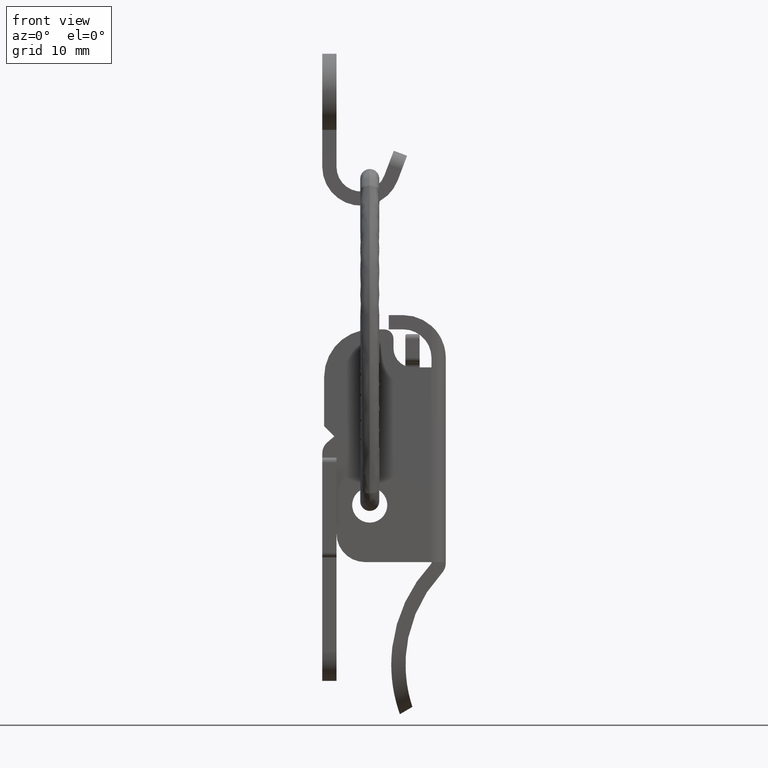
[diagram: clean part render]
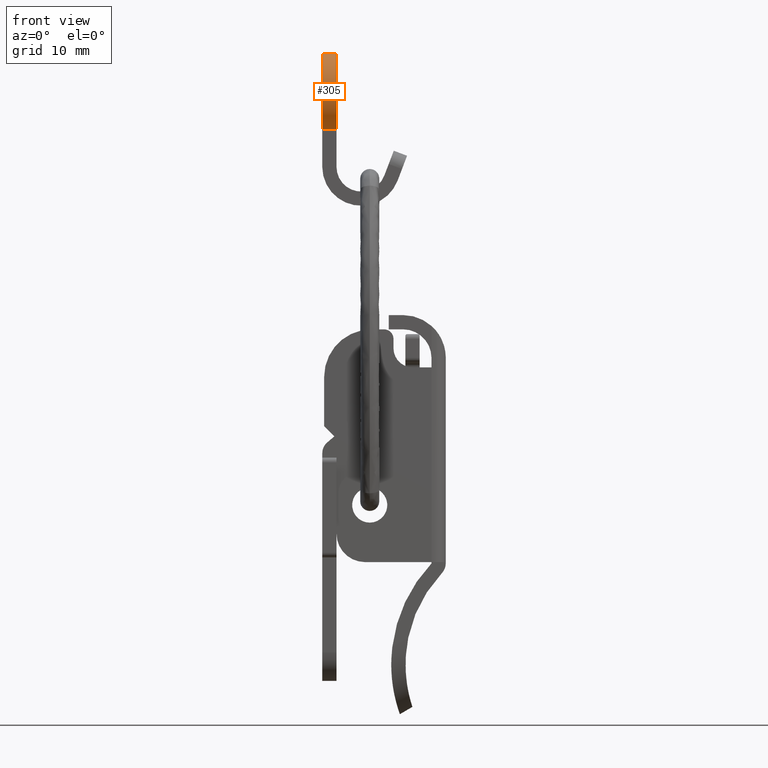
[diagram: same view with one face highlighted and labeled with its STEP entity id]
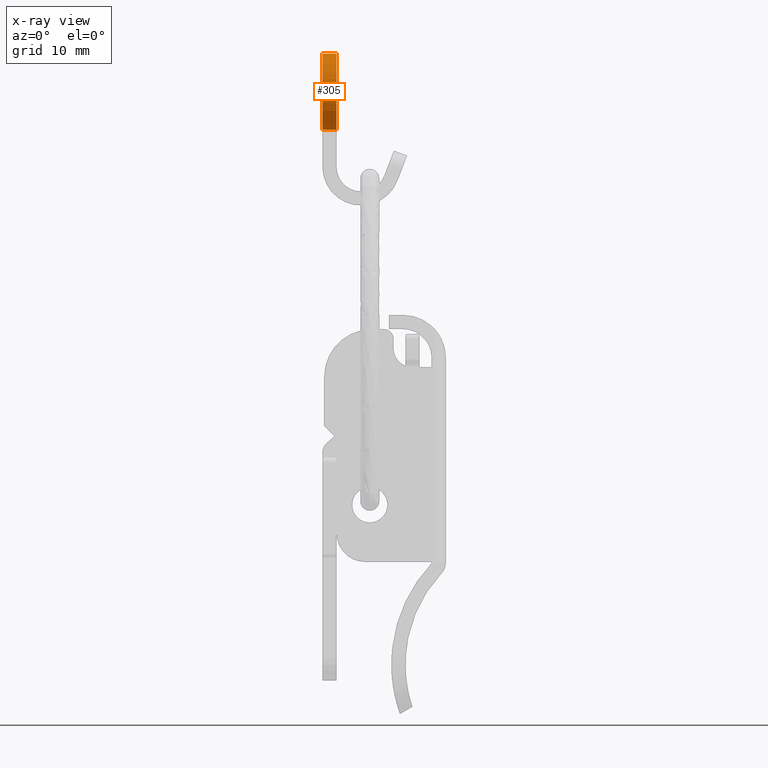
[diagram: x-ray of the same camera — body ghosted, the highlighted face saturated]
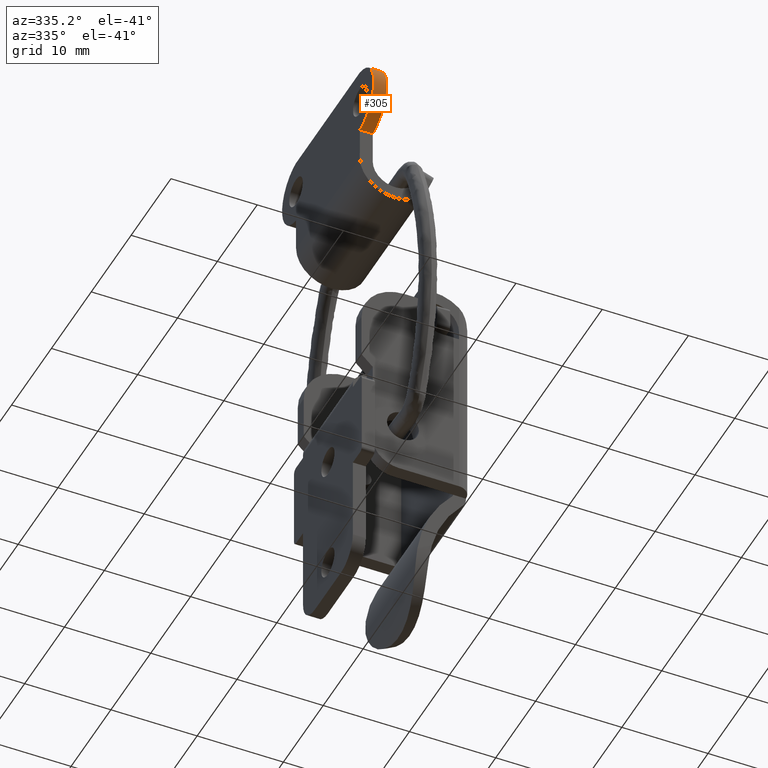
[diagram: same view with one face highlighted and labeled with its STEP entity id]
A machine part, front view. The second image highlights one B-rep face of the part: STEP entity #305.
The next image is the same camera in x-ray: the body ghosted, the highlighted face saturated — about 0% of this face is hidden behind the body in this view.
A second angle (auxiliary view) of the same face is appended — the face is thin or edge-on in the first view.
In plain terms, the highlighted cylindrical surface (partial cylindrical patch) has radius 4.0369 mm, axis along (-1, 0, 0).
Its self-contained STEP definition (entity closure, byte-faithful):
#305=ADVANCED_FACE('',(#1517),#1516,.T.);
#1516=CYLINDRICAL_SURFACE('',#2388,4.03690855919E+00);
#1517=FACE_OUTER_BOUND('',#2389,.T.);
#2385=CARTESIAN_POINT('',(-1.54630914408E+01,1.00000000000E+03,-1.26476606965E-11));
#2386=DIRECTION('',(-0.00000000000E+00,1.00000000000E+00,0.00000000000E+00));
#2387=DIRECTION('',(-0.00000000000E+00,-0.00000000000E+00,1.00000000000E+00));
#2388=AXIS2_PLACEMENT_3D('',#2385,#2386,#2387);
#2389=EDGE_LOOP('',(#3074,#3075,#3076,#3077));
#3074=ORIENTED_EDGE('',*,*,#3443,.F.);
#3075=ORIENTED_EDGE('',*,*,#3455,.F.);
#3076=ORIENTED_EDGE('',*,*,#3432,.T.);
#3077=ORIENTED_EDGE('',*,*,#3456,.T.);
#3432=EDGE_CURVE('',#5544,#5537,#5545,.T.);
#3443=EDGE_CURVE('',#5613,#5593,#5620,.T.);
#3455=EDGE_CURVE('',#5544,#5613,#5700,.T.);
#3456=EDGE_CURVE('',#5537,#5593,#5706,.T.);
#5537=VERTEX_POINT('',#7113);
#5544=VERTEX_POINT('',#7116);
#5545=(BOUNDED_CURVE() B_SPLINE_CURVE(2,(#7117,#7118,#7119,#7120,#7121),.UNSPECIFIED.,.F.,.F.) B_SPLINE_CURVE_WITH_KNOTS((3,2,3),(0.00000000000E+00,5.00000000000E-01,1.00000000000E+00),.UNSPECIFIED.) CURVE() GEOMETRIC_REPRESENTATION_ITEM() RATIONAL_B_SPLINE_CURVE((1.00000000000E+00,7.53297637477E-01,1.00000000000E+00,7.53297637477E-01,1.00000000000E+00)) REPRESENTATION_ITEM('') );
#5593=VERTEX_POINT('',#7152);
#5613=VERTEX_POINT('',#7164);
#5620=(BOUNDED_CURVE() B_SPLINE_CURVE(2,(#7168,#7169,#7170,#7171,#7172),.UNSPECIFIED.,.F.,.F.) B_SPLINE_CURVE_WITH_KNOTS((3,2,3),(0.00000000000E+00,5.00000000000E-01,1.00000000000E+00),.UNSPECIFIED.) CURVE() GEOMETRIC_REPRESENTATION_ITEM() RATIONAL_B_SPLINE_CURVE((1.00000000000E+00,7.53297637477E-01,1.00000000000E+00,7.53297637477E-01,1.00000000000E+00)) REPRESENTATION_ITEM('') );
#5700=LINE('',#7222,#7223);
#5706=(BOUNDED_CURVE() B_SPLINE_CURVE(1,(#7225,#7226),.UNSPECIFIED.,.F.,.F.) B_SPLINE_CURVE_WITH_KNOTS((2,2),(0.00000000000E+00,1.00000000000E+00),.UNSPECIFIED.) CURVE() GEOMETRIC_REPRESENTATION_ITEM() RATIONAL_B_SPLINE_CURVE((1.00000000000E+00,1.00000000000E+00)) REPRESENTATION_ITEM('') );
#7113=CARTESIAN_POINT('',(-1.60077295916E+01,1.50000000000E+00,-4.00000000001E+00));
#7116=CARTESIAN_POINT('',(-1.60077295916E+01,1.50000000000E+00,3.99999999999E+00));
#7117=CARTESIAN_POINT('',(-1.60077295916E+01,1.50000000000E+00,3.99999999999E+00));
#7118=CARTESIAN_POINT('',(-1.95000000000E+01,1.50000000000E+00,3.52449407567E+00));
#7119=CARTESIAN_POINT('',(-1.95000000000E+01,1.50000000000E+00,-1.24124044376E-11));
#7120=CARTESIAN_POINT('',(-1.95000000000E+01,1.50000000000E+00,-3.52449407569E+00));
#7121=CARTESIAN_POINT('',(-1.60077295916E+01,1.50000000000E+00,-4.00000000001E+00));
#7152=CARTESIAN_POINT('',(-1.60077295916E+01,0.00000000000E+00,-4.00000000001E+00));
#7164=CARTESIAN_POINT('',(-1.60077295916E+01,0.00000000000E+00,3.99999999999E+00));
#7168=CARTESIAN_POINT('',(-1.60077295916E+01,0.00000000000E+00,3.99999999999E+00));
#7169=CARTESIAN_POINT('',(-1.95000000000E+01,0.00000000000E+00,3.52449407567E+00));
#7170=CARTESIAN_POINT('',(-1.95000000000E+01,0.00000000000E+00,-1.24124044376E-11));
#7171=CARTESIAN_POINT('',(-1.95000000000E+01,0.00000000000E+00,-3.52449407569E+00));
#7172=CARTESIAN_POINT('',(-1.60077295916E+01,0.00000000000E+00,-4.00000000001E+00));
#7222=CARTESIAN_POINT('',(-1.60077295916E+01,1.50000000000E+00,3.99999999999E+00));
#7223=VECTOR('',#7224,1.50000000000E+00);
#7224=DIRECTION('',(0.00000000000E+00,-1.00000000000E+00,0.00000000000E+00));
#7225=CARTESIAN_POINT('',(-1.60077295916E+01,1.50000000000E+00,-4.00000000001E+00));
#7226=CARTESIAN_POINT('',(-1.60077295916E+01,0.00000000000E+00,-4.00000000001E+00));